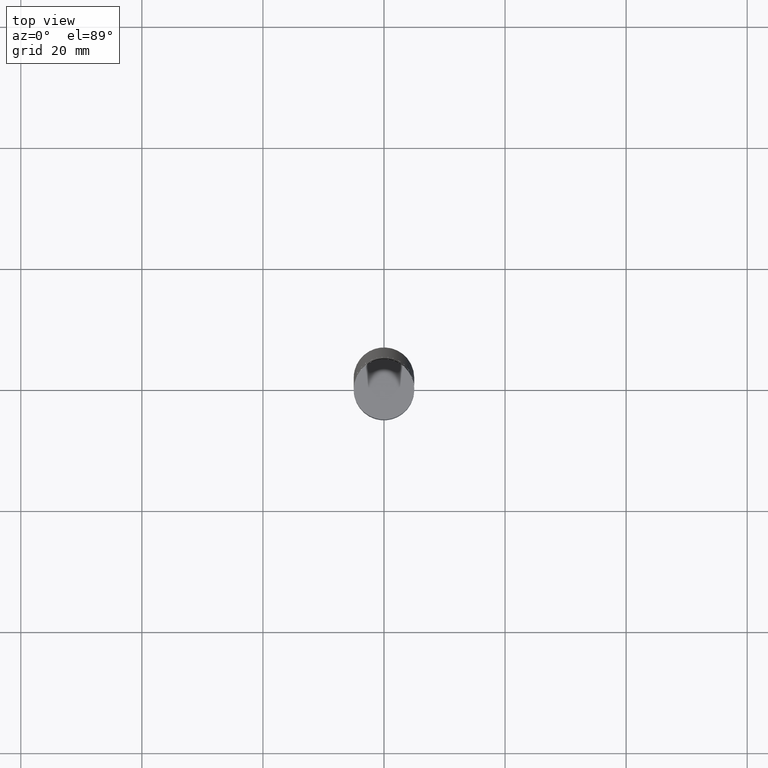
[diagram: clean part render]
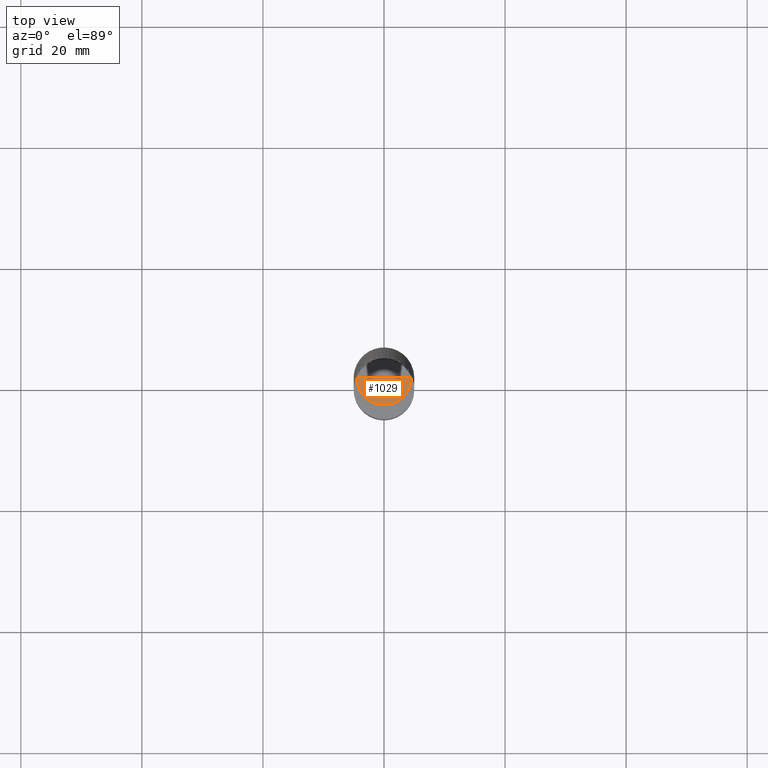
[diagram: same view with one face highlighted and labeled with its STEP entity id]
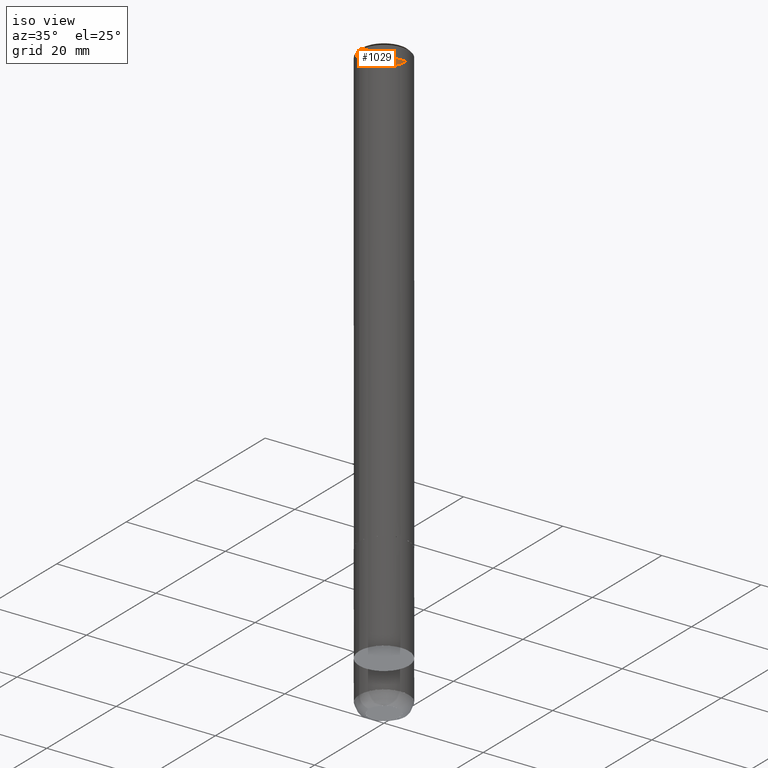
[diagram: same view with one face highlighted and labeled with its STEP entity id]
A machine part, top view. The second image highlights one B-rep face of the part: STEP entity #1029.
A second angle (iso view) of the same face is appended — the face is thin or edge-on in the first view.
In plain terms, the highlighted face is a freeform B-spline surface patch.
Its self-contained STEP definition (entity closure, byte-faithful):
#676=CARTESIAN_POINT('',(4.5,0.0,90.0));
#680=CARTESIAN_POINT('',(-4.5,0.0,90.0));
#681=CARTESIAN_POINT('',(0.0,0.0,90.0));
#688=CARTESIAN_POINT('',(-4.5,-4.5,90.0));
#689=CARTESIAN_POINT('',(0.0,-4.5,90.0));
#690=CARTESIAN_POINT('',(4.5,-4.5,90.0));
#1014=(
BOUNDED_SURFACE()
B_SPLINE_SURFACE(1,2,(
(#680,#688,#689,#690,#676),
(#681,#681,#681,#681,#681)
), .UNSPECIFIED.,.F.,.F.,.F.)
B_SPLINE_SURFACE_WITH_KNOTS((2,2),(3,2,3),(
0.0,1.0),(
0.0,0.5,1.0), .UNSPECIFIED.)
GEOMETRIC_REPRESENTATION_ITEM()
RATIONAL_B_SPLINE_SURFACE(((1.0,0.707106781187,1.0,0.707106781187,1.0),
(1.0,0.707106781187,1.0,0.707106781187,1.0)
))
REPRESENTATION_ITEM('')
SURFACE()
);
#1015=(
BOUNDED_CURVE()
B_SPLINE_CURVE(1,(#681,#676),.UNSPECIFIED.,.F.,.F.)
B_SPLINE_CURVE_WITH_KNOTS((2,2),
(0.0,1.0),.UNSPECIFIED.)
CURVE()
GEOMETRIC_REPRESENTATION_ITEM()
RATIONAL_B_SPLINE_CURVE((1.0,1.0))
REPRESENTATION_ITEM('')
);
#1016=(
BOUNDED_CURVE()
B_SPLINE_CURVE(2,(#676,#690,#689,#688,#680),.UNSPECIFIED.,.F.,.F.)
B_SPLINE_CURVE_WITH_KNOTS((3,2,3),
(0.0,0.5,1.0),.UNSPECIFIED.)
CURVE()
GEOMETRIC_REPRESENTATION_ITEM()
RATIONAL_B_SPLINE_CURVE((1.0,0.707106781187,1.0,0.707106781187,1.0))
REPRESENTATION_ITEM('')
);
#1017=(
BOUNDED_CURVE()
B_SPLINE_CURVE(1,(#680,#681),.UNSPECIFIED.,.F.,.F.)
B_SPLINE_CURVE_WITH_KNOTS((2,2),
(0.0,1.0),.UNSPECIFIED.)
CURVE()
GEOMETRIC_REPRESENTATION_ITEM()
RATIONAL_B_SPLINE_CURVE((1.0,1.0))
REPRESENTATION_ITEM('')
);
#1018=VERTEX_POINT('',#676);
#1019=VERTEX_POINT('',#680);
#1020=VERTEX_POINT('',#681);
#1021=EDGE_CURVE('',#1020,#1018,#1015,.T.);
#1022=EDGE_CURVE('',#1018,#1019,#1016,.T.);
#1023=EDGE_CURVE('',#1019,#1020,#1017,.T.);
#1024=ORIENTED_EDGE('',*,*,#1021,.T.);
#1025=ORIENTED_EDGE('',*,*,#1022,.T.);
#1026=ORIENTED_EDGE('',*,*,#1023,.T.);
#1027=EDGE_LOOP('',(#1024,#1025,#1026));
#1028=FACE_OUTER_BOUND('',#1027,.T.);
#1029=ADVANCED_FACE('',(#1028),#1014,.T.);